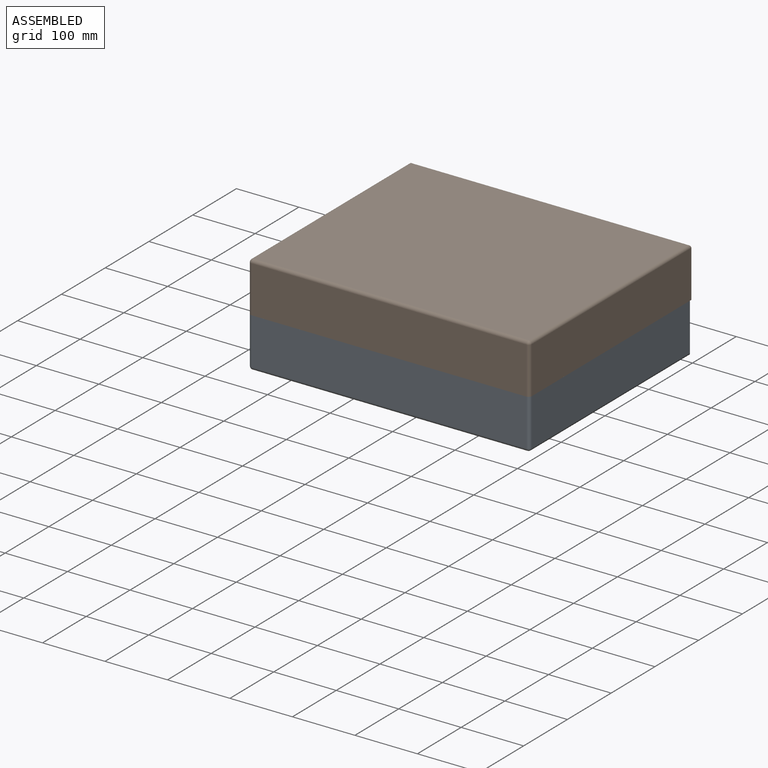
[diagram: assembled view]
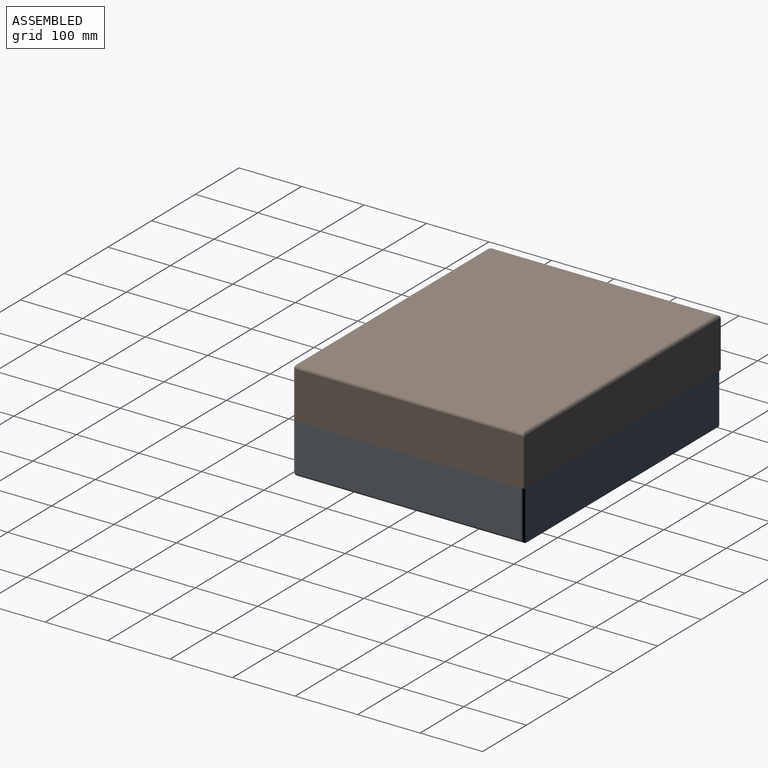
[diagram: assembled view, second angle]
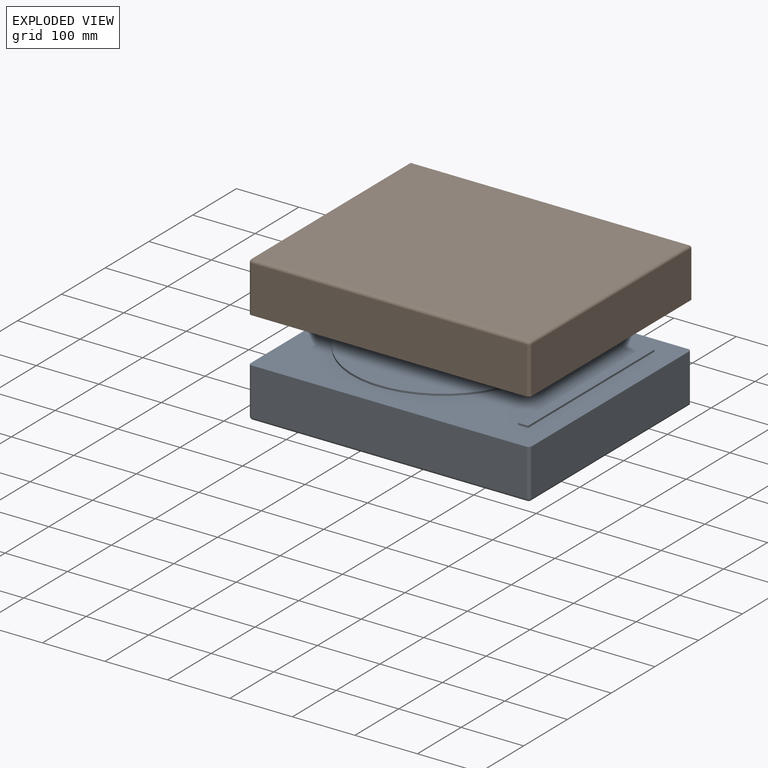
[diagram: exploded view]
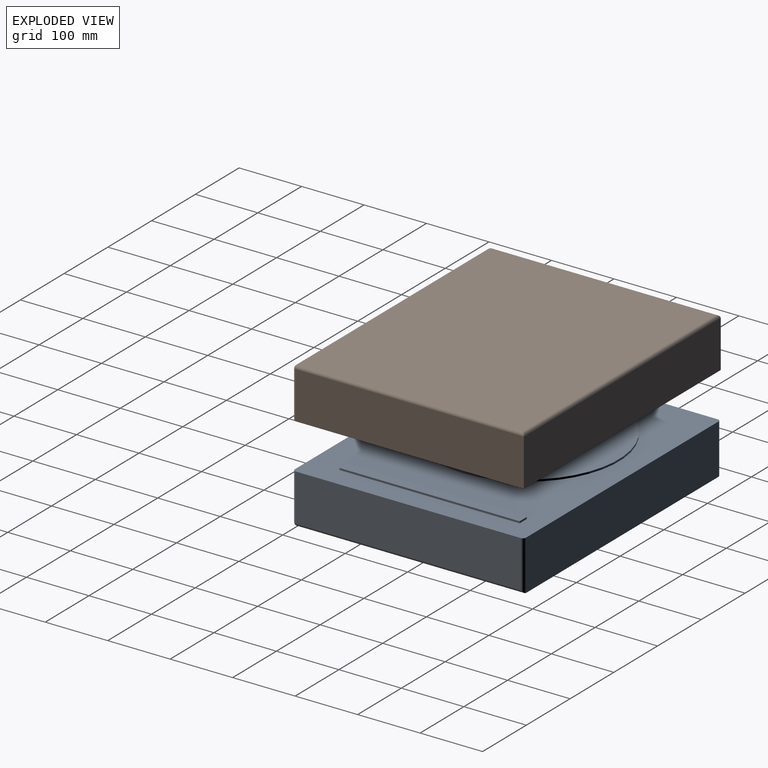
[diagram: exploded view, second angle]
ASSEMBLY  parts=2 mates=3
PART A: 22 faces, bbox 450x370x83 mm
  f0: plane 440x80mm, normal (0,1,0), area 35200mm2, adj f4,f5,f6,f14
  f1: plane 360x75mm, normal (-1,0,0), area 27000mm2, adj f4,f10,f13,f14
  f2: plane 440x75mm, normal (0,-1,0), area 33000mm2, adj f4,f7,f10,f11
  f3: plane 360x75mm, normal (1,0,0), area 27000mm2, adj f4,f6,f7,f8
  f4: plane 450x370mm, normal (0,0,1), area 94125.7mm2, adj f0,f1,f2,f3,f6,f7,f10,f14
  f5: plane 440x365mm, normal (0,0,-1), area 160600mm2, adj f0,f8,f11,f13
  f6: cylinder r=5mm len=80mm, axis (0,0,-1), area 614mm2, adj f0,f3,f4,f8
  f7: cylinder r=5mm len=75mm, axis (0,0,1), area 589mm2, adj f2,f3,f4,f9
  f8: cylinder r=5mm len=365mm, axis (0,1,0), area 2852.4mm2, adj f3,f5,f6,f9
  f9: sphere r=5mm, area 39.3mm2, adj f7,f8,f11
  f10: cylinder r=5mm len=75mm, axis (0,0,-1), area 589mm2, adj f1,f2,f4,f12
  f11: cylinder r=5mm len=440mm, axis (1,0,0), area 3455.8mm2, adj f2,f5,f9,f12
  f12: sphere r=5mm, area 39.3mm2, adj f10,f11,f13
  f13: cylinder r=5mm len=365mm, axis (0,-1,0), area 2852.4mm2, adj f1,f5,f12,f14
  f14: cylinder r=5mm len=80mm, axis (0,0,1), area 614mm2, adj f0,f1,f4,f13
  f15: cylinder r=146.8mm len=293.61mm, axis (0,0,-1), area 2767.2mm2, adj f4,f16
  f16: plane 293.61x293.61mm, normal (0,0,1), area 67706mm2, adj f15
  f17: plane 288.44x3mm, normal (1,0,0), area 865.3mm2, adj f4,f18,f20,f21
  f18: plane 16.11x3mm, normal (0,1,0), area 48.3mm2, adj f4,f17,f19,f21
  f19: plane 288.44x3mm, normal (-1,0,0), area 865.3mm2, adj f4,f18,f20,f21
  f20: plane 16.11x3mm, normal (0,-1,0), area 48.3mm2, adj f4,f17,f19,f21
  f21: plane 288.44x16.11mm, normal (0,0,1), area 4646.8mm2, adj f17,f18,f19,f20
PART B: 19 faces, bbox 450x370x80 mm
  f0: plane 450x370mm, normal (0,0,-1), area 9267.6mm2, adj f1,f2,f3,f4,f7,f13,f14,f15
  f1: plane 450x75mm, normal (0,1,0), area 33750mm2, adj f0,f2,f4,f8
  f2: plane 365x75mm, normal (-1,0,0), area 27375mm2, adj f0,f1,f10,f13
  f3: plane 440x75mm, normal (0,-1,0), area 33000mm2, adj f0,f7,f11,f13
  f4: plane 365x75mm, normal (1,0,0), area 27375mm2, adj f0,f1,f6,f7
  f5: plane 440x360mm, normal (0,0,1), area 158400mm2, adj f6,f8,f10,f11
  f6: cylinder r=5mm len=365mm, axis (0,-1,0), area 2852.4mm2, adj f4,f5,f8,f9
  f7: cylinder r=5mm len=75mm, axis (0,0,1), area 589mm2, adj f0,f3,f4,f9
  f8: cylinder r=5mm len=450mm, axis (1,0,0), area 3505.8mm2, adj f1,f5,f6,f10
  f9: sphere r=5mm, area 39.3mm2, adj f6,f7,f11
  f10: cylinder r=5mm len=365mm, axis (0,1,0), area 2852.4mm2, adj f2,f5,f8,f12
  f11: cylinder r=5mm len=440mm, axis (-1,0,0), area 3455.8mm2, adj f3,f5,f9,f12
  f12: sphere r=5mm, area 39.3mm2, adj f10,f11,f13
  f13: cylinder r=5mm len=75mm, axis (0,0,-1), area 589mm2, adj f0,f2,f3,f12
  f14: plane 439.19x70mm, normal (0,1,0), area 30743.2mm2, adj f0,f15,f17,f18
  f15: plane 357.98x70mm, normal (1,0,0), area 25058.8mm2, adj f0,f14,f16,f18
  f16: plane 439.19x70mm, normal (0,-1,0), area 30743.2mm2, adj f0,f15,f17,f18
  f17: plane 357.98x70mm, normal (-1,0,0), area 25058.8mm2, adj f0,f14,f16,f18
  f18: plane 439.19x357.98mm, normal (0,0,-1), area 157221.6mm2, adj f14,f15,f16,f17
PLACE A t=(-229.17,25.55,-57.82)mm
PLACE B t=(-234.91,-7,22.18)mm
MATE planar B.f3 <-> A.f2  axis (0,-1,0) through (-239.65,-194.27,59.68)mm
MATE planar B.f4 <-> A.f3  axis (1,0,0) through (-14.65,-6.77,22.18)mm
MATE planar B.f0 <-> A.f4  axis (0,0,-1) through (-232.77,8.06,22.18)mm
